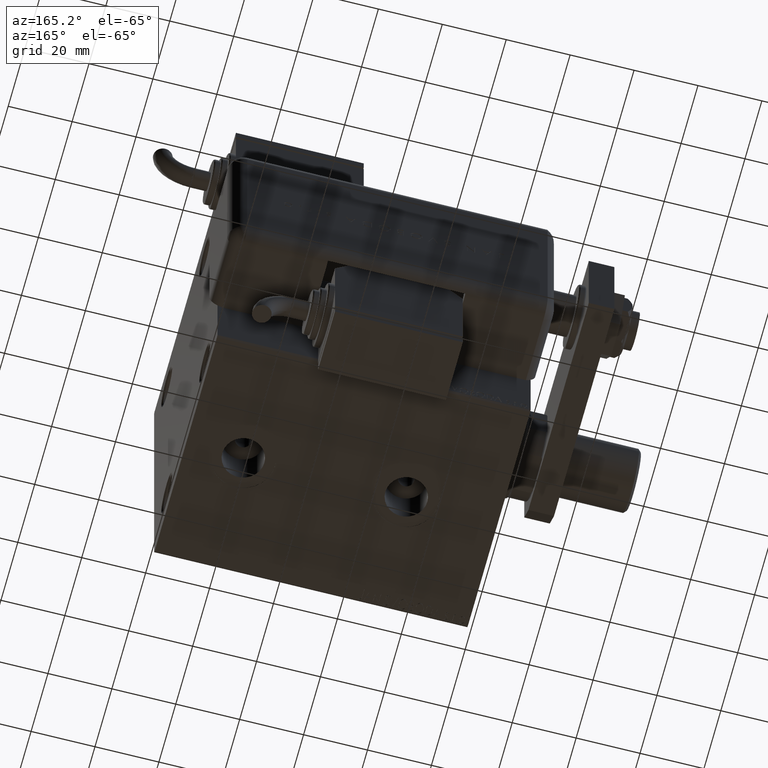
[diagram: clean part render]
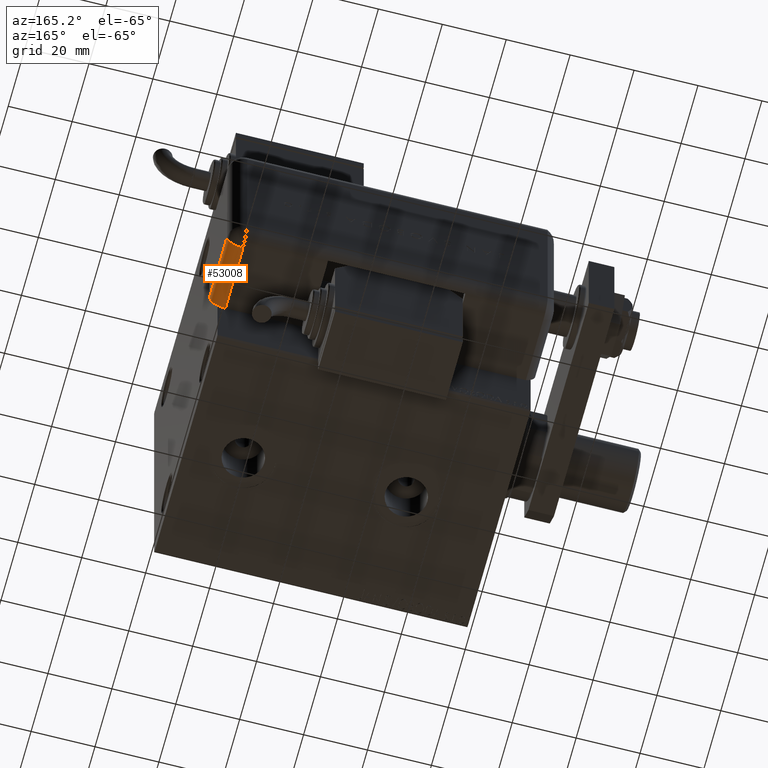
[diagram: same view with one face highlighted and labeled with its STEP entity id]
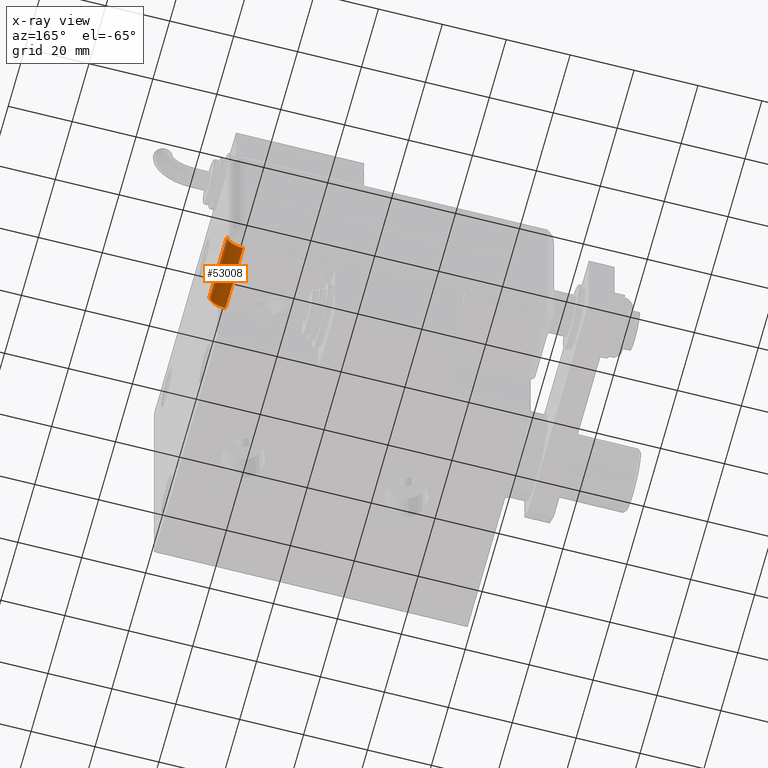
[diagram: x-ray of the same camera — body ghosted, the highlighted face saturated]
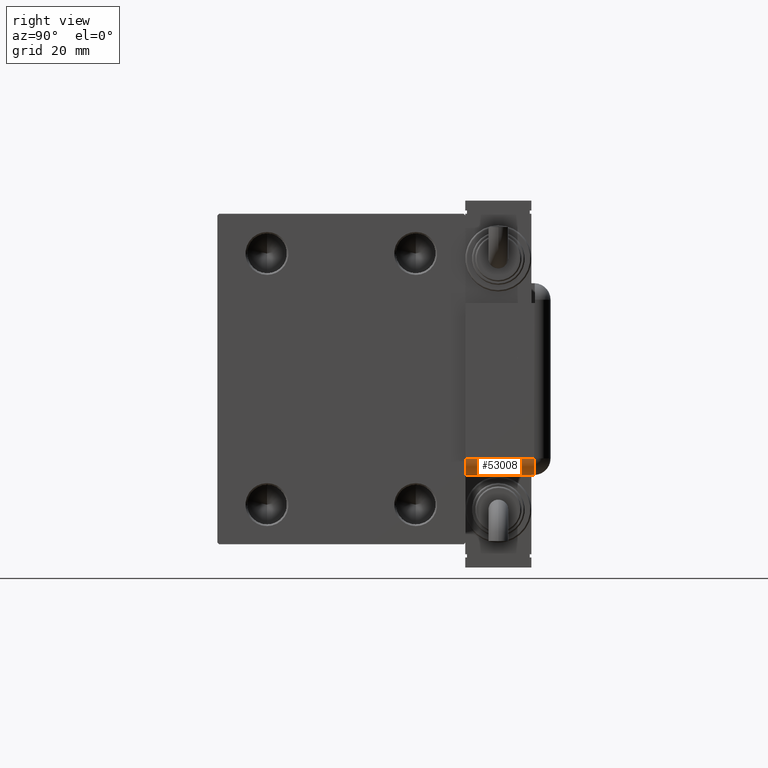
[diagram: same view with one face highlighted and labeled with its STEP entity id]
A machine part, auxiliary view. The second image highlights one B-rep face of the part: STEP entity #53008.
The next image is the same camera in x-ray: the body ghosted, the highlighted face saturated — about 0% of this face is hidden behind the body in this view.
A second angle (right view) of the same face is appended — the face is thin or edge-on in the first view.
In plain terms, the highlighted cylindrical surface (edge-blend (fillet) strip) has radius 5 mm, axis along (0, 1, -0).
Its self-contained STEP definition (entity closure, byte-faithful):
#2576 = DIRECTION ( 'NONE',  ( -1.000000000000000000, 2.079047426506382555E-15, 0.000000000000000000 ) ) ;
#4305 = VERTEX_POINT ( 'NONE', #5072 ) ;
#5072 = CARTESIAN_POINT ( 'NONE',  ( -28.99999999999999645, 20.79999999999998295, 5.000000000000004441 ) ) ;
#5790 = VERTEX_POINT ( 'NONE', #56898 ) ;
#11747 = AXIS2_PLACEMENT_3D ( 'NONE', #25301, #25904, #2576 ) ;
#12668 = CIRCLE ( 'NONE', #11747, 5.000000000000000888 ) ;
#13800 = CARTESIAN_POINT ( 'NONE',  ( -28.99999999999999645, -9.421223957302265857E-15, 5.000000000000004441 ) ) ;
#14188 = AXIS2_PLACEMENT_3D ( 'NONE', #34557, #36668, #40982 ) ;
#14759 = EDGE_CURVE ( 'NONE', #4305, #23921, #15467, .T. ) ;
#15467 = LINE ( 'NONE', #19767, #57936 ) ;
#15843 = CYLINDRICAL_SURFACE ( 'NONE', #14188, 5.000000000000000888 ) ;
#19565 = DIRECTION ( 'NONE',  ( -0.000000000000000000, 1.000000000000000000, -0.000000000000000000 ) ) ;
#19767 = CARTESIAN_POINT ( 'NONE',  ( -28.99999999999999645, -1.040834085586084257E-14, 5.000000000000004441 ) ) ;
#21170 = VECTOR ( 'NONE', #19565, 1000.000000000000000 ) ;
#22282 = EDGE_LOOP ( 'NONE', ( #25051, #48501, #42466, #25897 ) ) ;
#23921 = VERTEX_POINT ( 'NONE', #13800 ) ;
#25051 = ORIENTED_EDGE ( 'NONE', *, *, #37910, .F. ) ;
#25301 = CARTESIAN_POINT ( 'NONE',  ( -23.99999999999999645, 1.006139616066548115E-13, 5.000000000000004441 ) ) ;
#25897 = ORIENTED_EDGE ( 'NONE', *, *, #60343, .F. ) ;
#25904 = DIRECTION ( 'NONE',  ( -2.079047426506382950E-15, -1.000000000000000000, 0.000000000000000000 ) ) ;
#26662 = AXIS2_PLACEMENT_3D ( 'NONE', #29530, #57489, #39660 ) ;
#29530 = CARTESIAN_POINT ( 'NONE',  ( -23.99999999999999645, 20.79999999999998295, 5.000000000000000000 ) ) ;
#29638 = FACE_OUTER_BOUND ( 'NONE', #22282, .T. ) ;
#34557 = CARTESIAN_POINT ( 'NONE',  ( -23.99999999999999645, 25.79999999999998295, 5.000000000000004441 ) ) ;
#36194 = CARTESIAN_POINT ( 'NONE',  ( -23.99999999999999645, 20.79999999999998295, 0.000000000000000000 ) ) ;
#36668 = DIRECTION ( 'NONE',  ( 0.000000000000000000, 1.000000000000000000, 0.000000000000000000 ) ) ;
#37363 = CARTESIAN_POINT ( 'NONE',  ( -23.99999999999999645, 20.79999999999998295, 0.000000000000000000 ) ) ;
#37910 = EDGE_CURVE ( 'NONE', #23921, #5790, #12668, .T. ) ;
#39660 = DIRECTION ( 'NONE',  ( 0.000000000000000000, 0.000000000000000000, 1.000000000000000000 ) ) ;
#40982 = DIRECTION ( 'NONE',  ( 0.000000000000000000, 0.000000000000000000, 1.000000000000000000 ) ) ;
#41561 = VERTEX_POINT ( 'NONE', #36194 ) ;
#42466 = ORIENTED_EDGE ( 'NONE', *, *, #44555, .F. ) ;
#44555 = EDGE_CURVE ( 'NONE', #41561, #4305, #50173, .T. ) ;
#47478 = LINE ( 'NONE', #37363, #21170 ) ;
#48501 = ORIENTED_EDGE ( 'NONE', *, *, #14759, .F. ) ;
#50173 = CIRCLE ( 'NONE', #26662, 5.000000000000000000 ) ;
#53008 = ADVANCED_FACE ( 'NONE', ( #29638 ), #15843, .T. ) ;
#56898 = CARTESIAN_POINT ( 'NONE',  ( -23.99999999999999289, 1.007682896475360021E-13, 0.000000000000000000 ) ) ;
#57489 = DIRECTION ( 'NONE',  ( 0.000000000000000000, 1.000000000000000000, 0.000000000000000000 ) ) ;
#57809 = DIRECTION ( 'NONE',  ( 0.000000000000000000, -1.000000000000000000, 0.000000000000000000 ) ) ;
#57936 = VECTOR ( 'NONE', #57809, 1000.000000000000000 ) ;
#60343 = EDGE_CURVE ( 'NONE', #5790, #41561, #47478, .T. ) ;